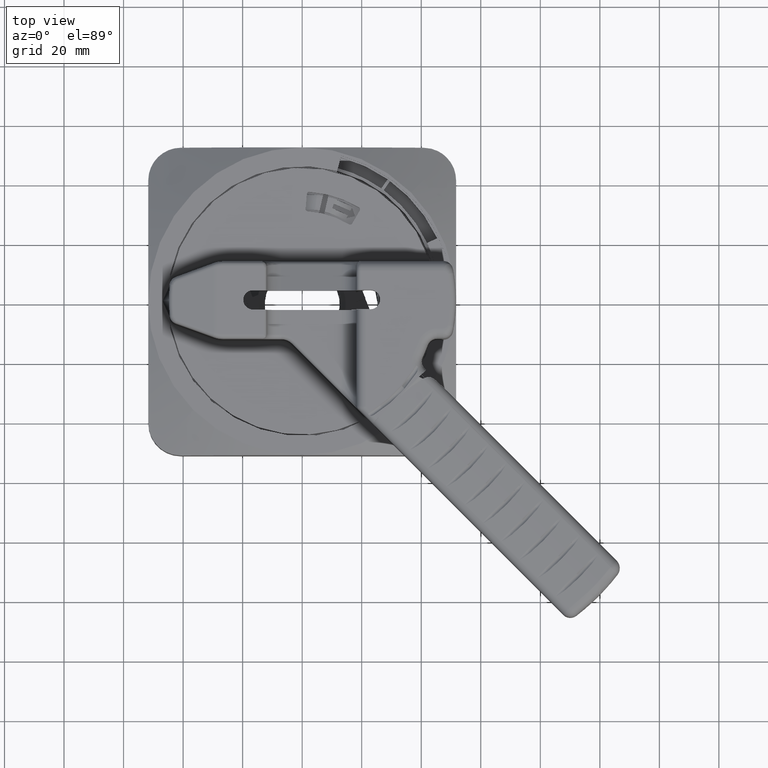
[diagram: clean part render]
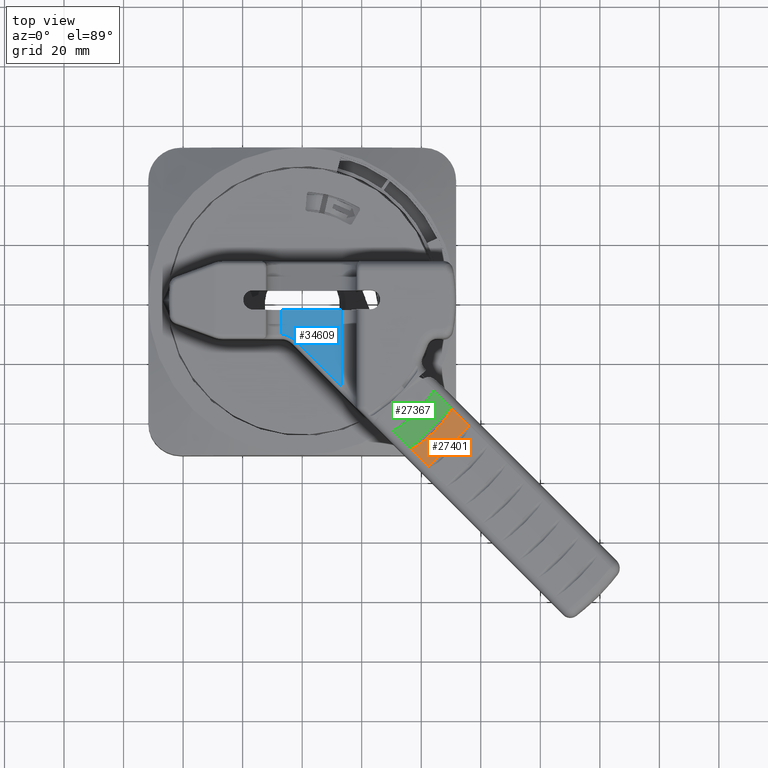
[diagram: same view with three faces highlighted in distinct colors, each labeled with its STEP entity id]
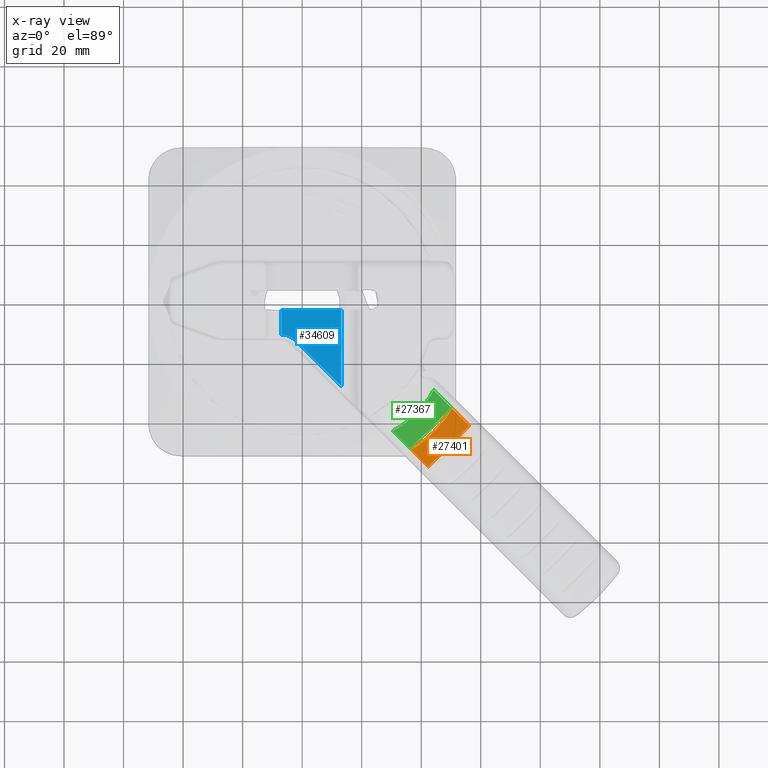
[diagram: x-ray of the same camera — body ghosted, the three highlighted faces saturated]
A machine part, top view with three faces highlighted in distinct colors.
The next image is the same camera in x-ray (body ghosted, the three faces saturated) — at least one of them is partly hidden behind the body in this view.
Their STEP definitions:

[orange] entity #27401 — the highlighted cylindrical surface (partial cylindrical patch) has radius 101.6 mm, axis along (0.7071, -0.7071, 0).
#15523=CARTESIAN_POINT('',(1.981753198632E0,-1.440917004236E0,
2.264676544550E0));
#15524=CARTESIAN_POINT('',(1.979387464197E0,-1.447099168840E0,
2.265257080554E0));
#15525=CARTESIAN_POINT('',(1.973551834839E0,-1.459728671469E0,
2.266483142562E0));
#15526=CARTESIAN_POINT('',(1.962601244545E0,-1.479831584370E0,
2.268429294892E0));
#15527=CARTESIAN_POINT('',(1.949543681302E0,-1.501374322048E0,
2.270454687757E0));
#15528=CARTESIAN_POINT('',(1.934299376976E0,-1.524589621388E0,
2.272529201484E0));
#15529=CARTESIAN_POINT('',(1.916718624175E0,-1.549623352941E0,
2.274610621803E0));
#15530=CARTESIAN_POINT('',(1.896641238148E0,-1.576560201319E0,
2.276642508589E0));
#15531=CARTESIAN_POINT('',(1.873799688292E0,-1.605567600086E0,
2.278562595372E0));
#15532=CARTESIAN_POINT('',(1.847831876539E0,-1.636860612402E0,
2.280292610207E0));
#15533=CARTESIAN_POINT('',(1.818385428511E0,-1.670567411339E0,
2.281725465311E0));
#15534=CARTESIAN_POINT('',(1.785026696193E0,-1.706834905993E0,
2.282729523864E0));
#15535=CARTESIAN_POINT('',(1.759741431216E0,-1.732892014901E0,2.283E0));
#15536=CARTESIAN_POINT('',(1.746316723059E0,-1.746316723059E0,2.283E0));
#15579=DIRECTION('',(7.071067811865E-1,-7.071067811866E-1,-9.485081169119E-14));
#15580=VECTOR('',#15579,3.230563337657E-1);
#15581=CARTESIAN_POINT('',(1.981753198632E0,-1.440917004236E0,
2.264676544550E0));
#15582=LINE('',#15581,#15580);
#15586=CARTESIAN_POINT('',(2.210188522943E0,-1.669352328547E0,
2.264676544550E0));
#15587=CARTESIAN_POINT('',(2.205376300085E0,-1.672921777382E0,
2.265245791118E0));
#15588=CARTESIAN_POINT('',(2.195830119421E0,-1.681094730634E0,
2.266422391555E0));
#15589=CARTESIAN_POINT('',(2.180944069810E0,-1.695312620064E0,
2.268252316530E0));
#15590=CARTESIAN_POINT('',(2.165164731370E0,-1.711339556348E0,
2.270130150249E0));
#15591=CARTESIAN_POINT('',(2.148189549017E0,-1.729205238919E0,
2.272041031202E0));
#15592=CARTESIAN_POINT('',(2.129815551392E0,-1.748956337671E0,
2.273957113228E0));
#15593=CARTESIAN_POINT('',(2.109866794971E0,-1.770632190900E0,
2.275840433857E0));
#15594=CARTESIAN_POINT('',(2.088188563723E0,-1.794252763901E0,
2.277643179843E0));
#15595=CARTESIAN_POINT('',(2.064484414652E0,-1.819980453942E0,
2.279317485295E0));
#15596=CARTESIAN_POINT('',(2.038477257062E0,-1.847933101035E0,
2.280796382165E0));
#15597=CARTESIAN_POINT('',(2.009864119781E0,-1.878224408492E0,
2.281995551939E0));
#15598=CARTESIAN_POINT('',(1.978273176215E0,-1.911007143508E0,
2.282811858556E0));
#15599=CARTESIAN_POINT('',(1.954882115984E0,-1.934697292985E0,
2.283012164221E0));
#15600=CARTESIAN_POINT('',(1.942603807504E0,-1.946955784508E0,
2.282998816268E0));
#15605=CARTESIAN_POINT('',(1.440917004236E0,-1.981753198632E0,
2.264676544550E0));
#15606=CARTESIAN_POINT('',(1.446954048781E0,-1.979442997419E0,
2.265243453059E0));
#15607=CARTESIAN_POINT('',(1.459382851512E0,-1.973725294821E0,
2.266449320235E0));
#15608=CARTESIAN_POINT('',(1.479471071294E0,-1.962810846836E0,
2.268394830049E0));
#15609=CARTESIAN_POINT('',(1.501073643282E0,-1.949734912164E0,
2.270427135246E0));
#15610=CARTESIAN_POINT('',(1.524323194486E0,-1.934481067531E0,
2.272506225517E0));
#15611=CARTESIAN_POINT('',(1.549384922073E0,-1.916892020935E0,
2.274591790694E0));
#15612=CARTESIAN_POINT('',(1.576378412965E0,-1.896781544105E0,
2.276629803777E0));
#15613=CARTESIAN_POINT('',(1.605435076090E0,-1.873907359641E0,
2.278554642459E0));
#15614=CARTESIAN_POINT('',(1.636750127656E0,-1.847926458772E0,
2.280287326431E0));
#15615=CARTESIAN_POINT('',(1.670489572189E0,-1.818455487882E0,
2.281722798346E0));
#15616=CARTESIAN_POINT('',(1.706765317379E0,-1.785092943257E0,
2.282728356449E0));
#15617=CARTESIAN_POINT('',(1.732866001597E0,-1.759767444520E0,2.283E0));
#15618=CARTESIAN_POINT('',(1.746316723059E0,-1.746316723059E0,2.283E0));
#15623=CARTESIAN_POINT('',(2.210188522943E0,-1.669352328547E0,
2.264676544550E0));
#15679=CARTESIAN_POINT('',(1.669352328547E0,-2.210188522943E0,
2.264676544550E0));
#15680=CARTESIAN_POINT('',(1.672881467647E0,-2.205430644448E0,
2.265239362625E0));
#15681=CARTESIAN_POINT('',(1.680956789914E0,-2.195985641533E0,
2.266403077392E0));
#15682=CARTESIAN_POINT('',(1.695018224175E0,-2.181244256461E0,
2.268215668461E0));
#15683=CARTESIAN_POINT('',(1.710855872516E0,-2.165633479263E0,
2.270075304746E0));
#15684=CARTESIAN_POINT('',(1.728461358585E0,-2.148889375674E0,
2.271964254978E0));
#15685=CARTESIAN_POINT('',(1.747895181963E0,-2.130797148420E0,
2.273858283561E0));
#15686=CARTESIAN_POINT('',(1.769207466796E0,-2.111174978564E0,
2.275722660854E0));
#15687=CARTESIAN_POINT('',(1.792481355513E0,-2.089815285004E0,
2.277516036973E0));
#15688=CARTESIAN_POINT('',(1.817796726582E0,-2.066502669677E0,
2.279185959465E0));
#15689=CARTESIAN_POINT('',(1.845280477988E0,-2.040958684541E0,
2.280670123702E0));
#15690=CARTESIAN_POINT('',(1.875076503152E0,-2.012860126371E0,
2.281889378772E0));
#15691=CARTESIAN_POINT('',(1.907310556646E0,-1.981868842186E0,
2.282743724764E0));
#15692=CARTESIAN_POINT('',(1.930571988961E0,-1.958968183924E0,
2.282985736279E0));
#15693=CARTESIAN_POINT('',(1.942603807504E0,-1.946955784508E0,
2.282998816268E0));
#16828=DIRECTION('',(7.071067811866E-1,-7.071067811865E-1,-9.347616224639E-14));
#16829=VECTOR('',#16828,3.230563337657E-1);
#16830=CARTESIAN_POINT('',(1.440917004236E0,-1.981753198632E0,
2.264676544550E0));
#16831=LINE('',#16830,#16829);
#25383=VERTEX_POINT('',#15623);
#25384=CARTESIAN_POINT('',(1.981753198632E0,-1.440917004236E0,
2.264676544550E0));
#25385=VERTEX_POINT('',#25384);
#25398=VERTEX_POINT('',#15536);
#25399=VERTEX_POINT('',#15600);
#25400=VERTEX_POINT('',#15679);
#25401=VERTEX_POINT('',#15605);
#27385=CARTESIAN_POINT('',(1.234710369795E0,-1.234710369795E0,-1.717E0));
#27386=DIRECTION('',(7.071067811865E-1,-7.071067811865E-1,0.E0));
#27387=DIRECTION('',(7.071067811865E-1,7.071067811865E-1,0.E0));
#27388=AXIS2_PLACEMENT_3D('',#27385,#27386,#27387);
#27389=CYLINDRICAL_SURFACE('',#27388,4.E0);
#27390=ORIENTED_EDGE('',*,*,#27374,.F.);
#27391=ORIENTED_EDGE('',*,*,#27204,.T.);
#27393=ORIENTED_EDGE('',*,*,#27392,.T.);
#27395=ORIENTED_EDGE('',*,*,#27394,.F.);
#27397=ORIENTED_EDGE('',*,*,#27396,.F.);
#27398=ORIENTED_EDGE('',*,*,#27376,.T.);
#27399=EDGE_LOOP('',(#27390,#27391,#27393,#27395,#27397,#27398));
#27400=FACE_OUTER_BOUND('',#27399,.F.);
#27401=ADVANCED_FACE('',(#27400),#27389,.T.);
#15537=B_SPLINE_CURVE_WITH_KNOTS('',3,(#15523,#15524,#15525,#15526,#15527,
#15528,#15529,#15530,#15531,#15532,#15533,#15534,#15535,#15536),.UNSPECIFIED.,
.F.,.F.,(4,1,1,1,1,1,1,1,1,1,1,4),(0.E0,9.090909090909E-2,1.818181818182E-1,
2.727272727273E-1,3.636363636364E-1,4.545454545455E-1,5.454545454545E-1,
6.363636363636E-1,7.272727272727E-1,8.181818181818E-1,9.090909090909E-1,1.E0),
.UNSPECIFIED.);
#15601=B_SPLINE_CURVE_WITH_KNOTS('',3,(#15586,#15587,#15588,#15589,#15590,
#15591,#15592,#15593,#15594,#15595,#15596,#15597,#15598,#15599,#15600),
.UNSPECIFIED.,.F.,.F.,(4,1,1,1,1,1,1,1,1,1,1,1,4),(0.E0,8.333333333333E-2,
1.666666666667E-1,2.5E-1,3.333333333333E-1,4.166666666667E-1,5.E-1,
5.833333333333E-1,6.666666666667E-1,7.5E-1,8.333333333333E-1,9.166666666667E-1,
1.E0),.UNSPECIFIED.);
#15619=B_SPLINE_CURVE_WITH_KNOTS('',3,(#15605,#15606,#15607,#15608,#15609,
#15610,#15611,#15612,#15613,#15614,#15615,#15616,#15617,#15618),.UNSPECIFIED.,
.F.,.F.,(4,1,1,1,1,1,1,1,1,1,1,4),(0.E0,9.090909090909E-2,1.818181818182E-1,
2.727272727273E-1,3.636363636364E-1,4.545454545455E-1,5.454545454545E-1,
6.363636363636E-1,7.272727272727E-1,8.181818181818E-1,9.090909090909E-1,1.E0),
.UNSPECIFIED.);
#15694=B_SPLINE_CURVE_WITH_KNOTS('',3,(#15679,#15680,#15681,#15682,#15683,
#15684,#15685,#15686,#15687,#15688,#15689,#15690,#15691,#15692,#15693),
.UNSPECIFIED.,.F.,.F.,(4,1,1,1,1,1,1,1,1,1,1,1,4),(0.E0,8.333333333333E-2,
1.666666666667E-1,2.5E-1,3.333333333333E-1,4.166666666667E-1,5.E-1,
5.833333333333E-1,6.666666666667E-1,7.5E-1,8.333333333333E-1,9.166666666667E-1,
1.E0),.UNSPECIFIED.);
#27204=EDGE_CURVE('',#25385,#25383,#15582,.T.);
#27374=EDGE_CURVE('',#25385,#25398,#15537,.T.);
#27376=EDGE_CURVE('',#25401,#25398,#15619,.T.);
#27392=EDGE_CURVE('',#25383,#25399,#15601,.T.);
#27394=EDGE_CURVE('',#25400,#25399,#15694,.T.);
#27396=EDGE_CURVE('',#25401,#25400,#16831,.T.);

[blue] entity #34609 — the highlighted planar face has unit normal (0, 0, 1).
#21484=DIRECTION('',(-1.E0,0.E0,0.E0));
#21485=VECTOR('',#21484,7.89E-1);
#21486=CARTESIAN_POINT('',(5.17E-1,-1.28E-1,1.692E0));
#21487=LINE('',#21486,#21485);
#24707=DIRECTION('',(0.E0,1.E0,0.E0));
#24708=VECTOR('',#24707,1.011253967444E0);
#24709=CARTESIAN_POINT('',(5.17E-1,-1.139253967444E0,1.692E0));
#24710=LINE('',#24709,#24708);
#24719=CARTESIAN_POINT('',(5.17E-1,-1.139253967444E0,1.692E0));
#24724=DIRECTION('',(4.055916406345E-12,1.E0,2.768122693071E-13));
#24725=VECTOR('',#24724,3.240680791146E-1);
#24726=CARTESIAN_POINT('',(-2.720000000013E-1,-4.520680791146E-1,1.692E0));
#24727=LINE('',#24726,#24725);
#24731=DIRECTION('',(-7.071067811866E-1,7.071067811865E-1,-7.142602969221E-14));
#24732=VECTOR('',#24731,8.642283553372E-1);
#24733=CARTESIAN_POINT('',(5.17E-1,-1.139253967444E0,1.692E0));
#24734=LINE('',#24733,#24732);
#24738=CARTESIAN_POINT('',(-2.779494936612E-1,-7.12E-1,1.692E0));
#24739=DIRECTION('',(0.E0,0.E0,1.E0));
#24740=DIRECTION('',(7.071067811866E-1,7.071067811865E-1,0.E0));
#24741=AXIS2_PLACEMENT_3D('',#24738,#24739,#24740);
#24746=CARTESIAN_POINT('',(-2.720000000013E-1,-4.520680791146E-1,1.692E0));
#25218=VERTEX_POINT('',#24746);
#25222=CARTESIAN_POINT('',(-2.72E-1,-1.28E-1,1.692E0));
#25223=VERTEX_POINT('',#25222);
#25242=CARTESIAN_POINT('',(5.17E-1,-1.28E-1,1.692E0));
#25243=VERTEX_POINT('',#25242);
#25466=VERTEX_POINT('',#24719);
#25489=CARTESIAN_POINT('',(-9.410173055268E-2,-5.281522368915E-1,1.692E0));
#25490=VERTEX_POINT('',#25489);
#34594=CARTESIAN_POINT('',(1.225E-1,-6.336269837220E-1,1.692E0));
#34595=DIRECTION('',(0.E0,0.E0,1.E0));
#34596=DIRECTION('',(-1.E0,0.E0,0.E0));
#34597=AXIS2_PLACEMENT_3D('',#34594,#34595,#34596);
#34598=PLANE('',#34597);
#34600=ORIENTED_EDGE('',*,*,#34599,.T.);
#34601=ORIENTED_EDGE('',*,*,#31727,.F.);
#34602=ORIENTED_EDGE('',*,*,#34585,.F.);
#34604=ORIENTED_EDGE('',*,*,#34603,.T.);
#34606=ORIENTED_EDGE('',*,*,#34605,.T.);
#34607=EDGE_LOOP('',(#34600,#34601,#34602,#34604,#34606));
#34608=FACE_OUTER_BOUND('',#34607,.F.);
#34609=ADVANCED_FACE('',(#34608),#34598,.T.);
#24742=CIRCLE('',#24741,2.6E-1);
#31727=EDGE_CURVE('',#25243,#25223,#21487,.T.);
#34585=EDGE_CURVE('',#25466,#25243,#24710,.T.);
#34599=EDGE_CURVE('',#25218,#25223,#24727,.T.);
#34603=EDGE_CURVE('',#25466,#25490,#24734,.T.);
#34605=EDGE_CURVE('',#25490,#25218,#24742,.T.);

[green] entity #27367 — the highlighted cylindrical surface (partial cylindrical patch) has radius 101.6 mm, axis along (0.7071, -0.7071, 0).
#15421=CARTESIAN_POINT('',(1.737862259655E0,-1.197026065259E0,
2.264676544550E0));
#15422=CARTESIAN_POINT('',(1.735632200243E0,-1.203275326286E0,
2.265252422995E0));
#15423=CARTESIAN_POINT('',(1.730085431477E0,-1.216063069532E0,
2.266470052057E0));
#15424=CARTESIAN_POINT('',(1.719589331086E0,-1.236430215726E0,
2.268405449900E0));
#15425=CARTESIAN_POINT('',(1.706993596214E0,-1.258269629245E0,
2.270423265925E0));
#15426=CARTESIAN_POINT('',(1.692209287811E0,-1.281808087001E0,
2.272493471912E0));
#15427=CARTESIAN_POINT('',(1.675071386832E0,-1.307191300555E0,
2.274574346784E0));
#15428=CARTESIAN_POINT('',(1.655413770005E0,-1.334483763137E0,
2.276608350915E0));
#15429=CARTESIAN_POINT('',(1.632946705258E0,-1.363854243450E0,
2.278533727831E0));
#15430=CARTESIAN_POINT('',(1.607280395397E0,-1.395516103855E0,
2.280271906646E0));
#15431=CARTESIAN_POINT('',(1.578040125462E0,-1.429575893917E0,
2.281714024407E0));
#15432=CARTESIAN_POINT('',(1.544754550850E0,-1.466166134271E0,
2.282726585591E0));
#15433=CARTESIAN_POINT('',(1.519397850090E0,-1.492402984820E0,2.283E0));
#15434=CARTESIAN_POINT('',(1.505900417455E0,-1.505900417455E0,2.283E0));
#15459=DIRECTION('',(7.071067811855E-1,-7.071067811876E-1,-1.027305240599E-13));
#15460=VECTOR('',#15459,3.242141616967E-1);
#15461=CARTESIAN_POINT('',(1.737862259655E0,-1.197026065259E0,
2.264676544550E0));
#15462=LINE('',#15461,#15460);
#15466=CARTESIAN_POINT('',(1.967116291947E0,-1.426280097552E0,
2.264676544550E0));
#15467=CARTESIAN_POINT('',(1.962750318887E0,-1.429647383597E0,
2.265201753765E0));
#15468=CARTESIAN_POINT('',(1.954107834941E0,-1.437265012621E0,
2.266283278325E0));
#15469=CARTESIAN_POINT('',(1.940712876222E0,-1.450398068207E0,
2.267962175137E0));
#15470=CARTESIAN_POINT('',(1.926618362799E0,-1.465073052761E0,
2.269682672990E0));
#15471=CARTESIAN_POINT('',(1.911557958524E0,-1.481312296036E0,
2.271436107331E0));
#15472=CARTESIAN_POINT('',(1.895363442436E0,-1.499142865884E0,
2.273202391967E0));
#15473=CARTESIAN_POINT('',(1.877869698153E0,-1.518612555253E0,
2.274956209227E0));
#15474=CARTESIAN_POINT('',(1.858969020288E0,-1.539712035598E0,
2.276660784165E0));
#15475=CARTESIAN_POINT('',(1.838467207238E0,-1.562521590135E0,
2.278280523548E0));
#15476=CARTESIAN_POINT('',(1.816112455475E0,-1.587169709172E0,
2.279772711684E0));
#15477=CARTESIAN_POINT('',(1.791671687152E0,-1.613739456054E0,
2.281079647921E0));
#15478=CARTESIAN_POINT('',(1.764857762403E0,-1.642342562348E0,
2.282131157639E0));
#15479=CARTESIAN_POINT('',(1.735351278938E0,-1.673092585267E0,
2.282840207880E0));
#15480=CARTESIAN_POINT('',(1.713594052143E0,-1.695154556684E0,
2.283011196135E0));
#15481=CARTESIAN_POINT('',(1.702190603825E0,-1.706536039855E0,
2.282998819824E0));
#15486=CARTESIAN_POINT('',(1.197026065259E0,-1.737862259655E0,
2.264676544550E0));
#15487=CARTESIAN_POINT('',(1.203117581879E0,-1.735688491603E0,
2.265237886620E0));
#15488=CARTESIAN_POINT('',(1.215684748881E0,-1.730263957036E0,
2.266433757378E0));
#15489=CARTESIAN_POINT('',(1.236026236501E0,-1.719812049004E0,
2.268367507680E0));
#15490=CARTESIAN_POINT('',(1.257926078583E0,-1.707202055264E0,
2.270392296496E0));
#15491=CARTESIAN_POINT('',(1.281503608009E0,-1.692408445230E0,
2.272467604725E0));
#15492=CARTESIAN_POINT('',(1.306918208876E0,-1.675262829707E0,
2.274553049508E0));
#15493=CARTESIAN_POINT('',(1.334271401083E0,-1.655572559168E0,
2.276593642458E0));
#15494=CARTESIAN_POINT('',(1.363695441738E0,-1.633072476531E0,
2.278524282528E0));
#15495=CARTESIAN_POINT('',(1.395389069647E0,-1.607387022360E0,
2.280265866144E0));
#15496=CARTESIAN_POINT('',(1.429482523010E0,-1.578122971437E0,
2.281710821556E0));
#15497=CARTESIAN_POINT('',(1.466086000899E0,-1.544830396191E0,
2.282725256201E0));
#15498=CARTESIAN_POINT('',(1.492373083546E0,-1.519427751364E0,2.283E0));
#15499=CARTESIAN_POINT('',(1.505900417455E0,-1.505900417455E0,2.283E0));
#15504=CARTESIAN_POINT('',(1.967116291947E0,-1.426280097552E0,
2.264676544550E0));
#15560=CARTESIAN_POINT('',(1.426280097552E0,-1.967116291947E0,
2.264676544549E0));
#15561=CARTESIAN_POINT('',(1.429885243244E0,-1.962441913602E0,
2.265238853695E0));
#15562=CARTESIAN_POINT('',(1.438110516302E0,-1.953180268079E0,
2.266400355877E0));
#15563=CARTESIAN_POINT('',(1.452393944485E0,-1.938736182611E0,
2.268208477491E0));
#15564=CARTESIAN_POINT('',(1.468456720415E0,-1.923433495082E0,
2.270063822982E0));
#15565=CARTESIAN_POINT('',(1.486287919123E0,-1.907005767727E0,
2.271948838528E0));
#15566=CARTESIAN_POINT('',(1.505949024364E0,-1.889230825968E0,
2.273839906737E0));
#15567=CARTESIAN_POINT('',(1.527486905598E0,-1.869920543178E0,
2.275702540637E0));
#15568=CARTESIAN_POINT('',(1.550983778779E0,-1.848857069331E0,
2.277495819340E0));
#15569=CARTESIAN_POINT('',(1.576517151324E0,-1.825812829524E0,
2.279167517327E0));
#15570=CARTESIAN_POINT('',(1.604216954823E0,-1.800489110602E0,
2.280655630495E0));
#15571=CARTESIAN_POINT('',(1.634230108498E0,-1.772536489221E0,
2.281880647211E0));
#15572=CARTESIAN_POINT('',(1.666682582756E0,-1.741585343001E0,
2.282741193648E0));
#15573=CARTESIAN_POINT('',(1.690090789994E0,-1.718612547211E0,
2.282985687738E0));
#15574=CARTESIAN_POINT('',(1.702190603825E0,-1.706536039855E0,
2.282998819824E0));
#16821=DIRECTION('',(7.071067811876E-1,-7.071067811855E-1,-9.862130309755E-14));
#16822=VECTOR('',#16821,3.242141616967E-1);
#16823=CARTESIAN_POINT('',(1.197026065259E0,-1.737862259655E0,
2.264676544550E0));
#16824=LINE('',#16823,#16822);
#25386=VERTEX_POINT('',#15504);
#25387=CARTESIAN_POINT('',(1.737862259655E0,-1.197026065259E0,
2.264676544550E0));
#25388=VERTEX_POINT('',#25387);
#25394=VERTEX_POINT('',#15434);
#25395=VERTEX_POINT('',#15481);
#25396=VERTEX_POINT('',#15560);
#25397=VERTEX_POINT('',#15486);
#27351=CARTESIAN_POINT('',(1.234710369795E0,-1.234710369795E0,-1.717E0));
#27352=DIRECTION('',(7.071067811865E-1,-7.071067811865E-1,0.E0));
#27353=DIRECTION('',(7.071067811865E-1,7.071067811865E-1,0.E0));
#27354=AXIS2_PLACEMENT_3D('',#27351,#27352,#27353);
#27355=CYLINDRICAL_SURFACE('',#27354,4.E0);
#27356=ORIENTED_EDGE('',*,*,#27340,.F.);
#27357=ORIENTED_EDGE('',*,*,#27208,.T.);
#27359=ORIENTED_EDGE('',*,*,#27358,.T.);
#27361=ORIENTED_EDGE('',*,*,#27360,.F.);
#27363=ORIENTED_EDGE('',*,*,#27362,.F.);
#27364=ORIENTED_EDGE('',*,*,#27342,.T.);
#27365=EDGE_LOOP('',(#27356,#27357,#27359,#27361,#27363,#27364));
#27366=FACE_OUTER_BOUND('',#27365,.F.);
#27367=ADVANCED_FACE('',(#27366),#27355,.T.);
#15435=B_SPLINE_CURVE_WITH_KNOTS('',3,(#15421,#15422,#15423,#15424,#15425,
#15426,#15427,#15428,#15429,#15430,#15431,#15432,#15433,#15434),.UNSPECIFIED.,
.F.,.F.,(4,1,1,1,1,1,1,1,1,1,1,4),(0.E0,9.090909090909E-2,1.818181818182E-1,
2.727272727273E-1,3.636363636364E-1,4.545454545455E-1,5.454545454545E-1,
6.363636363636E-1,7.272727272727E-1,8.181818181818E-1,9.090909090909E-1,1.E0),
.UNSPECIFIED.);
#15482=B_SPLINE_CURVE_WITH_KNOTS('',3,(#15466,#15467,#15468,#15469,#15470,
#15471,#15472,#15473,#15474,#15475,#15476,#15477,#15478,#15479,#15480,#15481),
.UNSPECIFIED.,.F.,.F.,(4,1,1,1,1,1,1,1,1,1,1,1,1,4),(0.E0,7.692307692308E-2,
1.538461538462E-1,2.307692307692E-1,3.076923076923E-1,3.846153846154E-1,
4.615384615385E-1,5.384615384615E-1,6.153846153846E-1,6.923076923077E-1,
7.692307692308E-1,8.461538461538E-1,9.230769230769E-1,1.E0),.UNSPECIFIED.);
#15500=B_SPLINE_CURVE_WITH_KNOTS('',3,(#15486,#15487,#15488,#15489,#15490,
#15491,#15492,#15493,#15494,#15495,#15496,#15497,#15498,#15499),.UNSPECIFIED.,
.F.,.F.,(4,1,1,1,1,1,1,1,1,1,1,4),(0.E0,9.090909090909E-2,1.818181818182E-1,
2.727272727273E-1,3.636363636364E-1,4.545454545455E-1,5.454545454545E-1,
6.363636363636E-1,7.272727272727E-1,8.181818181818E-1,9.090909090909E-1,1.E0),
.UNSPECIFIED.);
#15575=B_SPLINE_CURVE_WITH_KNOTS('',3,(#15560,#15561,#15562,#15563,#15564,
#15565,#15566,#15567,#15568,#15569,#15570,#15571,#15572,#15573,#15574),
.UNSPECIFIED.,.F.,.F.,(4,1,1,1,1,1,1,1,1,1,1,1,4),(0.E0,8.333333333333E-2,
1.666666666667E-1,2.5E-1,3.333333333333E-1,4.166666666667E-1,5.E-1,
5.833333333333E-1,6.666666666667E-1,7.5E-1,8.333333333333E-1,9.166666666667E-1,
1.E0),.UNSPECIFIED.);
#27208=EDGE_CURVE('',#25388,#25386,#15462,.T.);
#27340=EDGE_CURVE('',#25388,#25394,#15435,.T.);
#27342=EDGE_CURVE('',#25397,#25394,#15500,.T.);
#27358=EDGE_CURVE('',#25386,#25395,#15482,.T.);
#27360=EDGE_CURVE('',#25396,#25395,#15575,.T.);
#27362=EDGE_CURVE('',#25397,#25396,#16824,.T.);